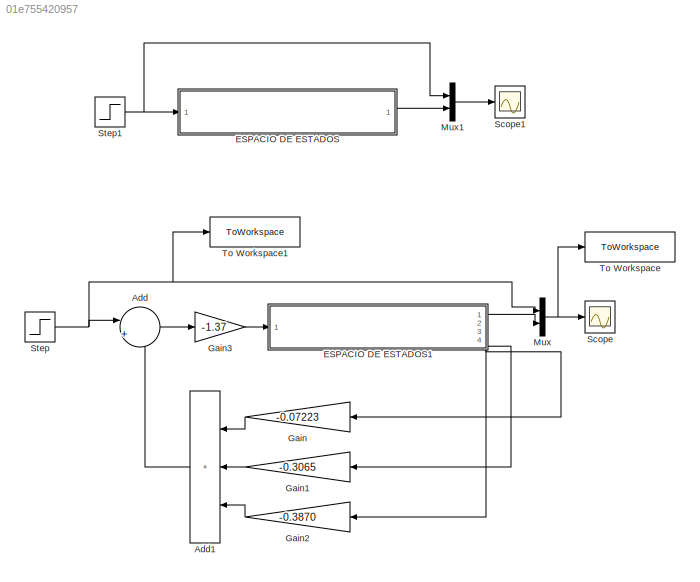
MODEL slx_01e755420957
KIND model
CONFIG AbsTol = auto
CONFIG EnableMultiTasking = off
CONFIG FixedStep = 0.001
CONFIG MaxStep = auto
CONFIG MinStep = auto
CONFIG RelTol = 1e-3
CONFIG SampleTimeConstraint = Unconstrained
CONFIG SolverName = FixedStepDiscrete
CONFIG StartTime = 0.0
CONFIG StopTime = 3
BLOCK [Sum] Add
  Inputs = |+-
  Ports = [2, 1]
BLOCK [Sum] Add1
  IconShape = rectangular
  Inputs = +++
  Ports = [3, 1]
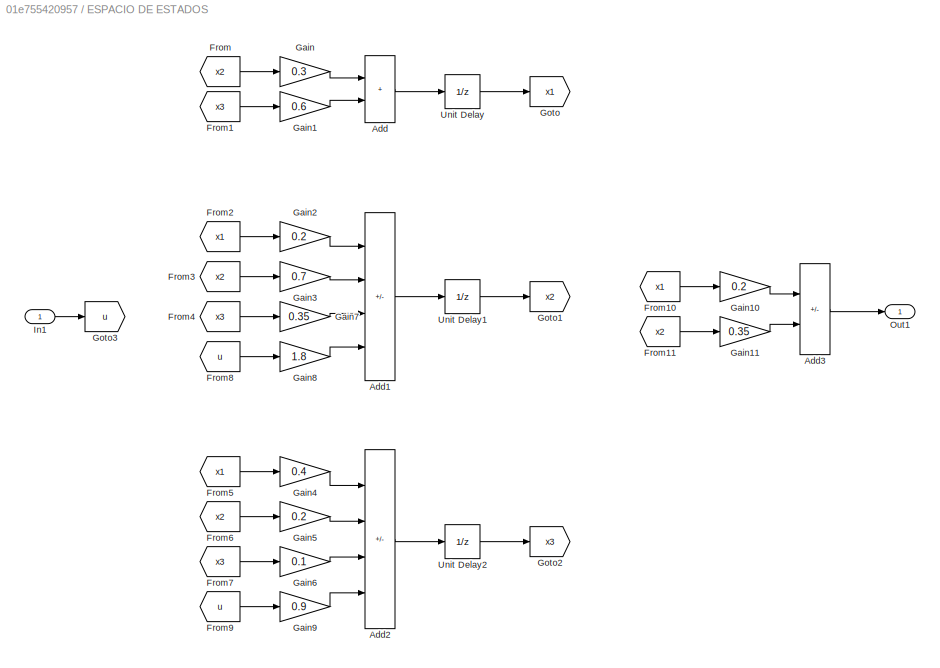
BLOCK [SubSystem] ESPACIO DE ESTADOS
  Ports = [1, 1]
  RequestExecContextInheritance = off
BLOCK [Sum] ESPACIO DE ESTADOS/Add
  IconShape = rectangular
  Ports = [2, 1]
BLOCK [Sum] ESPACIO DE ESTADOS/Add1
  IconShape = rectangular
  Inputs = +--+
  Ports = [4, 1]
BLOCK [Sum] ESPACIO DE ESTADOS/Add2
  IconShape = rectangular
  Inputs = -+++
  Ports = [4, 1]
BLOCK [Sum] ESPACIO DE ESTADOS/Add3
  IconShape = rectangular
  Inputs = +-
  Ports = [2, 1]
BLOCK [From] ESPACIO DE ESTADOS/From
  GotoTag = x2
BLOCK [From] ESPACIO DE ESTADOS/From1
  GotoTag = x3
BLOCK [From] ESPACIO DE ESTADOS/From10
  GotoTag = x1
BLOCK [From] ESPACIO DE ESTADOS/From11
  GotoTag = x2
BLOCK [From] ESPACIO DE ESTADOS/From2
  GotoTag = x1
BLOCK [From] ESPACIO DE ESTADOS/From3
  GotoTag = x2
BLOCK [From] ESPACIO DE ESTADOS/From4
  GotoTag = x3
BLOCK [From] ESPACIO DE ESTADOS/From5
  GotoTag = x1
BLOCK [From] ESPACIO DE ESTADOS/From6
  GotoTag = x2
BLOCK [From] ESPACIO DE ESTADOS/From7
  GotoTag = x3
BLOCK [From] ESPACIO DE ESTADOS/From8
  GotoTag = u
BLOCK [From] ESPACIO DE ESTADOS/From9
  GotoTag = u
BLOCK [Gain] ESPACIO DE ESTADOS/Gain
  Gain = 0.3
BLOCK [Gain] ESPACIO DE ESTADOS/Gain1
  Gain = 0.6
BLOCK [Gain] ESPACIO DE ESTADOS/Gain10
  Gain = 0.2
BLOCK [Gain] ESPACIO DE ESTADOS/Gain11
  Gain = 0.35
BLOCK [Gain] ESPACIO DE ESTADOS/Gain2
  Gain = 0.2
BLOCK [Gain] ESPACIO DE ESTADOS/Gain3
  Gain = 0.7
BLOCK [Gain] ESPACIO DE ESTADOS/Gain4
  Gain = 0.4
BLOCK [Gain] ESPACIO DE ESTADOS/Gain5
  Gain = 0.2
BLOCK [Gain] ESPACIO DE ESTADOS/Gain6
  Gain = 0.1
BLOCK [Gain] ESPACIO DE ESTADOS/Gain7
  Gain = 0.35
BLOCK [Gain] ESPACIO DE ESTADOS/Gain8
  Gain = 1.8
BLOCK [Gain] ESPACIO DE ESTADOS/Gain9
  Gain = 0.9
BLOCK [Goto] ESPACIO DE ESTADOS/Goto
  GotoTag = x1
BLOCK [Goto] ESPACIO DE ESTADOS/Goto1
  GotoTag = x2
BLOCK [Goto] ESPACIO DE ESTADOS/Goto2
  GotoTag = x3
BLOCK [Goto] ESPACIO DE ESTADOS/Goto3
  GotoTag = u
BLOCK [Inport] ESPACIO DE ESTADOS/In1
BLOCK [Outport] ESPACIO DE ESTADOS/Out1
BLOCK [UnitDelay] ESPACIO DE ESTADOS/Unit Delay
  HasFrameUpgradeWarning = on
  SampleTime = -1
BLOCK [UnitDelay] ESPACIO DE ESTADOS/Unit Delay1
  HasFrameUpgradeWarning = on
  SampleTime = -1
BLOCK [UnitDelay] ESPACIO DE ESTADOS/Unit Delay2
  HasFrameUpgradeWarning = on
  SampleTime = -1
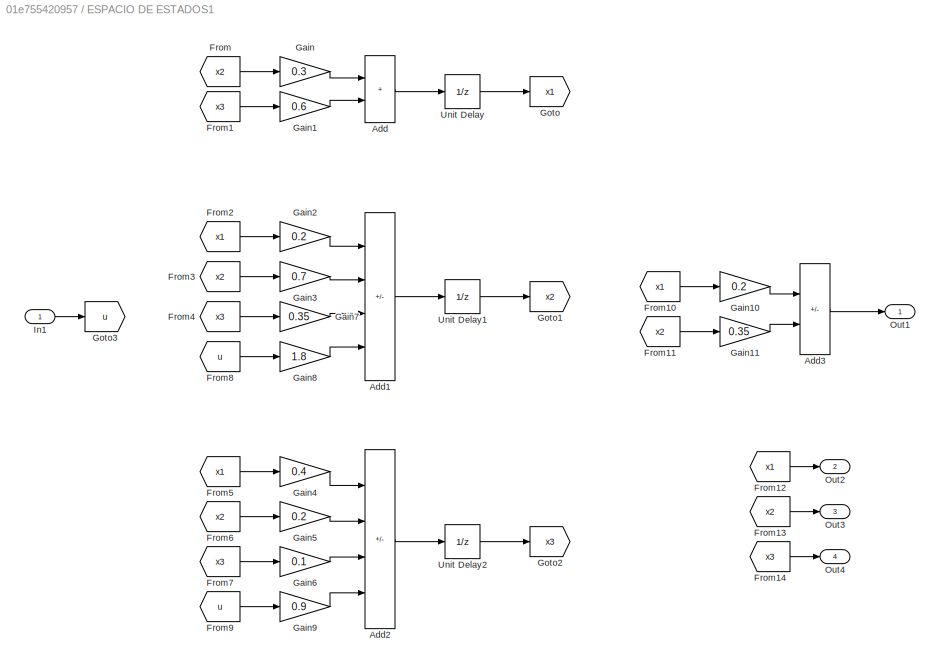
BLOCK [SubSystem] ESPACIO DE ESTADOS1
  PortSchema = {"entries":[{"content":{"sides":[{"content":{"connectorIds":["In1"]},"type":"ConnectorPlacement.EquallySpacedRectSide","uuid":"e4c7e91e-e27a-4516-8912-0ffb8324b1cf"},{"content":{"connectorIds":["Out1"],"side":"RIGHT"},"type":"ConnectorPlacement.EquallySpacedRectSide","uuid":"c8b6f25f-762c-42f8-84b8-6d4e17a9e409"},{"content":{"connectorIds":[],"side":"TOP"},"type":"ConnectorPlacement.EquallySpacedR...<+404ch>
  Ports = [1, 4]
  RequestExecContextInheritance = off
BLOCK [Sum] ESPACIO DE ESTADOS1/Add
  IconShape = rectangular
  Ports = [2, 1]
BLOCK [Sum] ESPACIO DE ESTADOS1/Add1
  IconShape = rectangular
  Inputs = +--+
  Ports = [4, 1]
BLOCK [Sum] ESPACIO DE ESTADOS1/Add2
  IconShape = rectangular
  Inputs = -+++
  Ports = [4, 1]
BLOCK [Sum] ESPACIO DE ESTADOS1/Add3
  IconShape = rectangular
  Inputs = +-
  Ports = [2, 1]
BLOCK [From] ESPACIO DE ESTADOS1/From
  GotoTag = x2
BLOCK [From] ESPACIO DE ESTADOS1/From1
  GotoTag = x3
BLOCK [From] ESPACIO DE ESTADOS1/From10
  GotoTag = x1
BLOCK [From] ESPACIO DE ESTADOS1/From11
  GotoTag = x2
BLOCK [From] ESPACIO DE ESTADOS1/From12
  GotoTag = x1
BLOCK [From] ESPACIO DE ESTADOS1/From13
  GotoTag = x2
BLOCK [From] ESPACIO DE ESTADOS1/From14
  GotoTag = x3
BLOCK [From] ESPACIO DE ESTADOS1/From2
  GotoTag = x1
BLOCK [From] ESPACIO DE ESTADOS1/From3
  GotoTag = x2
BLOCK [From] ESPACIO DE ESTADOS1/From4
  GotoTag = x3
BLOCK [From] ESPACIO DE ESTADOS1/From5
  GotoTag = x1
BLOCK [From] ESPACIO DE ESTADOS1/From6
  GotoTag = x2
BLOCK [From] ESPACIO DE ESTADOS1/From7
  GotoTag = x3
BLOCK [From] ESPACIO DE ESTADOS1/From8
  GotoTag = u
BLOCK [From] ESPACIO DE ESTADOS1/From9
  GotoTag = u
BLOCK [Gain] ESPACIO DE ESTADOS1/Gain
  Gain = 0.3
BLOCK [Gain] ESPACIO DE ESTADOS1/Gain1
  Gain = 0.6
BLOCK [Gain] ESPACIO DE ESTADOS1/Gain10
  Gain = 0.2
BLOCK [Gain] ESPACIO DE ESTADOS1/Gain11
  Gain = 0.35
BLOCK [Gain] ESPACIO DE ESTADOS1/Gain2
  Gain = 0.2
BLOCK [Gain] ESPACIO DE ESTADOS1/Gain3
  Gain = 0.7
BLOCK [Gain] ESPACIO DE ESTADOS1/Gain4
  Gain = 0.4
BLOCK [Gain] ESPACIO DE ESTADOS1/Gain5
  Gain = 0.2
BLOCK [Gain] ESPACIO DE ESTADOS1/Gain6
  Gain = 0.1
BLOCK [Gain] ESPACIO DE ESTADOS1/Gain7
  Gain = 0.35
BLOCK [Gain] ESPACIO DE ESTADOS1/Gain8
  Gain = 1.8
BLOCK [Gain] ESPACIO DE ESTADOS1/Gain9
  Gain = 0.9
BLOCK [Goto] ESPACIO DE ESTADOS1/Goto
  GotoTag = x1
BLOCK [Goto] ESPACIO DE ESTADOS1/Goto1
  GotoTag = x2
BLOCK [Goto] ESPACIO DE ESTADOS1/Goto2
  GotoTag = x3
BLOCK [Goto] ESPACIO DE ESTADOS1/Goto3
  GotoTag = u
BLOCK [Inport] ESPACIO DE ESTADOS1/In1
BLOCK [Outport] ESPACIO DE ESTADOS1/Out1
BLOCK [Outport] ESPACIO DE ESTADOS1/Out2
  Port = 2
BLOCK [Outport] ESPACIO DE ESTADOS1/Out3
  Port = 3
BLOCK [Outport] ESPACIO DE ESTADOS1/Out4
  Port = 4
BLOCK [UnitDelay] ESPACIO DE ESTADOS1/Unit Delay
  HasFrameUpgradeWarning = on
  SampleTime = -1
BLOCK [UnitDelay] ESPACIO DE ESTADOS1/Unit Delay1
  HasFrameUpgradeWarning = on
  SampleTime = -1
BLOCK [UnitDelay] ESPACIO DE ESTADOS1/Unit Delay2
  HasFrameUpgradeWarning = on
  SampleTime = -1
BLOCK [Gain] Gain
  Gain = -0.07223
BLOCK [Gain] Gain1
  Gain = -0.3065
BLOCK [Gain] Gain2
  Gain = -0.3870
BLOCK [Gain] Gain3
  Gain = -1.37
BLOCK [Mux] Mux
  DisplayOption = bar
  Inputs = 2
  Ports = [2, 1]
BLOCK [Mux] Mux1
  DisplayOption = bar
  Inputs = 2
  Ports = [2, 1]
BLOCK [Scope] Scope
  Floating = off
  NumInputPorts = 1
  Ports = [1]
  ScopeSpecificationString = Simulink.scopes.TimeScopeBlockCfg('CurrentConfiguration', extmgr.ConfigurationSet(extmgr.Configuration('Core','General UI',true),extmgr.Configuration('Core','Source UI',true),extmgr.Configuration('Sources','WiredSimulink',true),extmgr.Configuration('Visuals','Time Domain',true,'SerializedDisplays',{struct('MinYLimReal','-27.31354','MaxYLimReal','29.52239','YLabelReal','','MinYLimMag','0.00000','Ma...<+1454ch>
BLOCK [Scope] Scope1
  Floating = off
  NumInputPorts = 1
  Ports = [1]
  ScopeSpecificationString = Simulink.scopes.TimeScopeBlockCfg('CurrentConfiguration', extmgr.ConfigurationSet(extmgr.Configuration('Core','General UI',true),extmgr.Configuration('Core','Source UI',true),extmgr.Configuration('Sources','WiredSimulink',true,'DataLoggingVariableName','ScopeData1'),extmgr.Configuration('Visuals','Time Domain',true,'SerializedDisplays',{struct('MinYLimReal','-2.47687','MaxYLimReal','2.3304','YLabe...<+1453ch>
BLOCK [Step] Step
  SampleTime = 0
BLOCK [Step] Step1
  SampleTime = 0
BLOCK [ToWorkspace] To Workspace
  FixptAsFi = on
  MaxDataPoints = inf
  Ports = [1]
  SampleTime = -1
  SaveFormat = Timeseries
  VariableName = salida
BLOCK [ToWorkspace] To Workspace1
  FixptAsFi = on
  MaxDataPoints = inf
  Ports = [1]
  SampleTime = -1
  SaveFormat = Timeseries
  VariableName = entrada
LINE Add1:1 -> Add:2
LINE Add:1 -> Gain3:1
LINE ESPACIO DE ESTADOS/Add1:1 -> ESPACIO DE ESTADOS/Unit Delay1:1
LINE ESPACIO DE ESTADOS/Add2:1 -> ESPACIO DE ESTADOS/Unit Delay2:1
LINE ESPACIO DE ESTADOS/Add3:1 -> ESPACIO DE ESTADOS/Out1:1
LINE ESPACIO DE ESTADOS/Add:1 -> ESPACIO DE ESTADOS/Unit Delay:1
LINE ESPACIO DE ESTADOS/From10:1 -> ESPACIO DE ESTADOS/Gain10:1
LINE ESPACIO DE ESTADOS/From11:1 -> ESPACIO DE ESTADOS/Gain11:1
LINE ESPACIO DE ESTADOS/From1:1 -> ESPACIO DE ESTADOS/Gain1:1
LINE ESPACIO DE ESTADOS/From2:1 -> ESPACIO DE ESTADOS/Gain2:1
LINE ESPACIO DE ESTADOS/From3:1 -> ESPACIO DE ESTADOS/Gain3:1
LINE ESPACIO DE ESTADOS/From4:1 -> ESPACIO DE ESTADOS/Gain7:1
LINE ESPACIO DE ESTADOS/From5:1 -> ESPACIO DE ESTADOS/Gain4:1
LINE ESPACIO DE ESTADOS/From6:1 -> ESPACIO DE ESTADOS/Gain5:1
LINE ESPACIO DE ESTADOS/From7:1 -> ESPACIO DE ESTADOS/Gain6:1
LINE ESPACIO DE ESTADOS/From8:1 -> ESPACIO DE ESTADOS/Gain8:1
LINE ESPACIO DE ESTADOS/From9:1 -> ESPACIO DE ESTADOS/Gain9:1
LINE ESPACIO DE ESTADOS/From:1 -> ESPACIO DE ESTADOS/Gain:1
LINE ESPACIO DE ESTADOS/Gain10:1 -> ESPACIO DE ESTADOS/Add3:1
LINE ESPACIO DE ESTADOS/Gain11:1 -> ESPACIO DE ESTADOS/Add3:2
LINE ESPACIO DE ESTADOS/Gain1:1 -> ESPACIO DE ESTADOS/Add:2
LINE ESPACIO DE ESTADOS/Gain2:1 -> ESPACIO DE ESTADOS/Add1:1
LINE ESPACIO DE ESTADOS/Gain3:1 -> ESPACIO DE ESTADOS/Add1:2
LINE ESPACIO DE ESTADOS/Gain4:1 -> ESPACIO DE ESTADOS/Add2:1
LINE ESPACIO DE ESTADOS/Gain5:1 -> ESPACIO DE ESTADOS/Add2:2
LINE ESPACIO DE ESTADOS/Gain6:1 -> ESPACIO DE ESTADOS/Add2:3
LINE ESPACIO DE ESTADOS/Gain7:1 -> ESPACIO DE ESTADOS/Add1:3
LINE ESPACIO DE ESTADOS/Gain8:1 -> ESPACIO DE ESTADOS/Add1:4
LINE ESPACIO DE ESTADOS/Gain9:1 -> ESPACIO DE ESTADOS/Add2:4
LINE ESPACIO DE ESTADOS/Gain:1 -> ESPACIO DE ESTADOS/Add:1
LINE ESPACIO DE ESTADOS/In1:1 -> ESPACIO DE ESTADOS/Goto3:1
LINE ESPACIO DE ESTADOS/Unit Delay1:1 -> ESPACIO DE ESTADOS/Goto1:1
LINE ESPACIO DE ESTADOS/Unit Delay2:1 -> ESPACIO DE ESTADOS/Goto2:1
LINE ESPACIO DE ESTADOS/Unit Delay:1 -> ESPACIO DE ESTADOS/Goto:1
LINE ESPACIO DE ESTADOS1/Add1:1 -> ESPACIO DE ESTADOS1/Unit Delay1:1
LINE ESPACIO DE ESTADOS1/Add2:1 -> ESPACIO DE ESTADOS1/Unit Delay2:1
LINE ESPACIO DE ESTADOS1/Add3:1 -> ESPACIO DE ESTADOS1/Out1:1
LINE ESPACIO DE ESTADOS1/Add:1 -> ESPACIO DE ESTADOS1/Unit Delay:1
LINE ESPACIO DE ESTADOS1/From10:1 -> ESPACIO DE ESTADOS1/Gain10:1
LINE ESPACIO DE ESTADOS1/From11:1 -> ESPACIO DE ESTADOS1/Gain11:1
LINE ESPACIO DE ESTADOS1/From12:1 -> ESPACIO DE ESTADOS1/Out2:1
LINE ESPACIO DE ESTADOS1/From13:1 -> ESPACIO DE ESTADOS1/Out3:1
LINE ESPACIO DE ESTADOS1/From14:1 -> ESPACIO DE ESTADOS1/Out4:1
LINE ESPACIO DE ESTADOS1/From1:1 -> ESPACIO DE ESTADOS1/Gain1:1
LINE ESPACIO DE ESTADOS1/From2:1 -> ESPACIO DE ESTADOS1/Gain2:1
LINE ESPACIO DE ESTADOS1/From3:1 -> ESPACIO DE ESTADOS1/Gain3:1
LINE ESPACIO DE ESTADOS1/From4:1 -> ESPACIO DE ESTADOS1/Gain7:1
LINE ESPACIO DE ESTADOS1/From5:1 -> ESPACIO DE ESTADOS1/Gain4:1
LINE ESPACIO DE ESTADOS1/From6:1 -> ESPACIO DE ESTADOS1/Gain5:1
LINE ESPACIO DE ESTADOS1/From7:1 -> ESPACIO DE ESTADOS1/Gain6:1
LINE ESPACIO DE ESTADOS1/From8:1 -> ESPACIO DE ESTADOS1/Gain8:1
LINE ESPACIO DE ESTADOS1/From9:1 -> ESPACIO DE ESTADOS1/Gain9:1
LINE ESPACIO DE ESTADOS1/From:1 -> ESPACIO DE ESTADOS1/Gain:1
LINE ESPACIO DE ESTADOS1/Gain10:1 -> ESPACIO DE ESTADOS1/Add3:1
LINE ESPACIO DE ESTADOS1/Gain11:1 -> ESPACIO DE ESTADOS1/Add3:2
LINE ESPACIO DE ESTADOS1/Gain1:1 -> ESPACIO DE ESTADOS1/Add:2
LINE ESPACIO DE ESTADOS1/Gain2:1 -> ESPACIO DE ESTADOS1/Add1:1
LINE ESPACIO DE ESTADOS1/Gain3:1 -> ESPACIO DE ESTADOS1/Add1:2
LINE ESPACIO DE ESTADOS1/Gain4:1 -> ESPACIO DE ESTADOS1/Add2:1
LINE ESPACIO DE ESTADOS1/Gain5:1 -> ESPACIO DE ESTADOS1/Add2:2
LINE ESPACIO DE ESTADOS1/Gain6:1 -> ESPACIO DE ESTADOS1/Add2:3
LINE ESPACIO DE ESTADOS1/Gain7:1 -> ESPACIO DE ESTADOS1/Add1:3
LINE ESPACIO DE ESTADOS1/Gain8:1 -> ESPACIO DE ESTADOS1/Add1:4
LINE ESPACIO DE ESTADOS1/Gain9:1 -> ESPACIO DE ESTADOS1/Add2:4
LINE ESPACIO DE ESTADOS1/Gain:1 -> ESPACIO DE ESTADOS1/Add:1
LINE ESPACIO DE ESTADOS1/In1:1 -> ESPACIO DE ESTADOS1/Goto3:1
LINE ESPACIO DE ESTADOS1/Unit Delay1:1 -> ESPACIO DE ESTADOS1/Goto1:1
LINE ESPACIO DE ESTADOS1/Unit Delay2:1 -> ESPACIO DE ESTADOS1/Goto2:1
LINE ESPACIO DE ESTADOS1/Unit Delay:1 -> ESPACIO DE ESTADOS1/Goto:1
LINE ESPACIO DE ESTADOS1:1 -> Mux:2
LINE ESPACIO DE ESTADOS1:2 -> Gain:1
LINE ESPACIO DE ESTADOS1:3 -> Gain1:1
LINE ESPACIO DE ESTADOS1:4 -> Gain2:1
LINE ESPACIO DE ESTADOS:1 -> Mux1:2
LINE Gain1:1 -> Add1:2
LINE Gain2:1 -> Add1:3
LINE Gain3:1 -> ESPACIO DE ESTADOS1:1
LINE Gain:1 -> Add1:1
LINE Mux1:1 -> Scope1:1
NET Mux:1 -> Scope:1, To Workspace:1
NET Step1:1 -> ESPACIO DE ESTADOS:1, Mux1:1
NET Step:1 -> Add:1, Mux:1, To Workspace1:1
note: NET lines group one-source signal fan-out (src -> all destinations, sorted); 1:1 wires keep LINE
